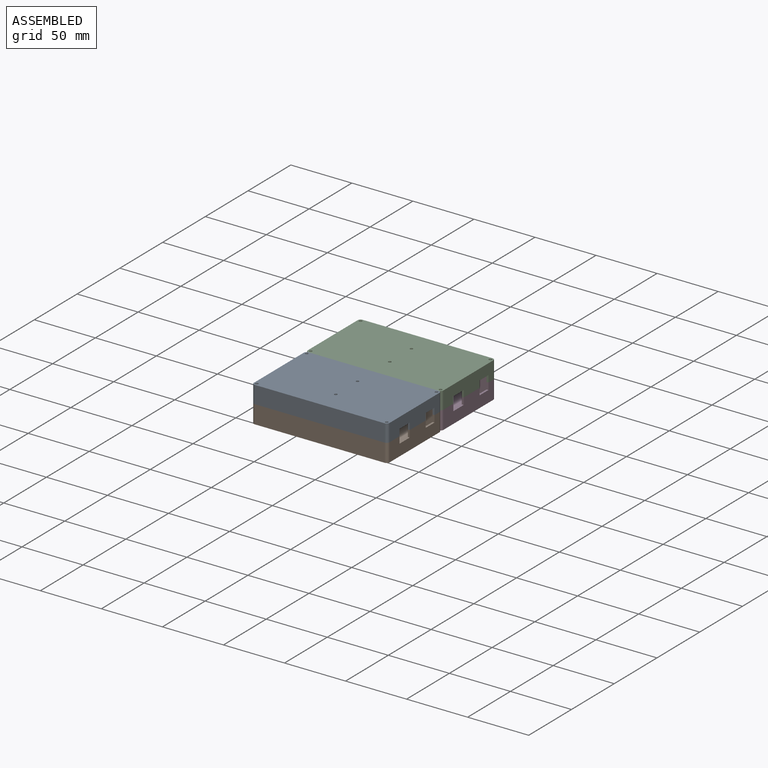
[diagram: assembled view]
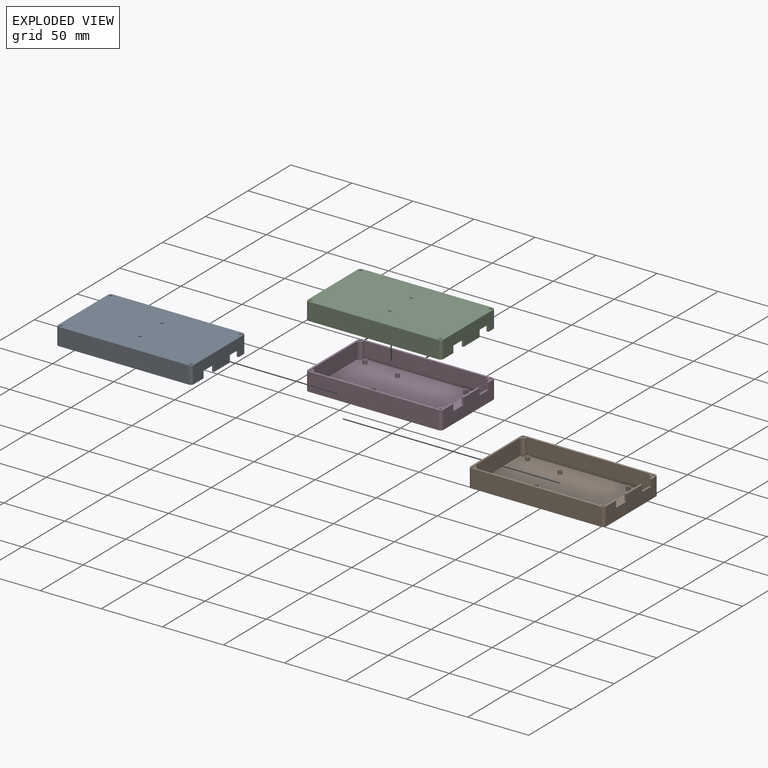
[diagram: exploded view]
GUIDED TOUR — MATED ASSEMBLY (Onshape document 59053b31947b3310e18dbb37, AutoMate assembly 59053b31947b3310e18dbb37_3f9804c256d4c738a9c018ee_5ea5561ca671f029e77b5cbb_default)

This assembly has 4 components, labeled P0..P3 below (a component is one placed occurrence of a part; the same part can appear more than once), held together by 9 mates. A mate is a constraint between two components; its type names the relative motion it leaves free:
  CYLINDRICAL — leaves both rotation about and translation along the listed axis free,
  PLANAR — leaves sliding in the plane through the listed point (normal = the listed direction) and rotation about that normal free.
Axis/direction vectors are unit vectors and 'through' points are millimeter coordinates, both in the assembly's world frame.

MATES
  1. PLANAR "Planar 6": P0 <-> P1, direction (-1.000, 0.000, 0.000) through (-55.56, -84.02, 25.72) mm
  2. CYLINDRICAL "Cylindrical 1": P2 <-> P3, axis (0.000, 0.000, 1.000) through (53.18, -29.15, 14.92) mm
  3. PLANAR "Planar 4": P1 <-> P3, direction (0.000, 0.000, -1.000) through (0.00, -63.07, 0.00) mm
  4. PLANAR "Planar 5": P0 <-> P1, direction (0.000, 0.000, -1.000) through (-53.97, -36.30, 14.92) mm
  5. PLANAR "Planar 7": P0 <-> P1, direction (0.000, -1.000, 0.000) through (0.00, -94.60, 22.07) mm
  6. PLANAR "Planar 3": P1 <-> P3, direction (-1.000, 0.000, 0.000) through (-55.56, -63.07, 0.00) mm
  7. CYLINDRICAL "Cylindrical 2": P2 <-> P3, axis (0.000, 0.000, 1.000) through (-53.18, -29.15, 14.92) mm
  8. PLANAR "Planar 1": P3 <-> P2, direction (0.000, 0.000, 1.000) through (-53.18, -29.15, 14.92) mm
  9. PLANAR "Planar 2": P1 <-> P3, direction (0.000, 1.000, 0.000) through (0.00, -31.53, 7.46) mm

ASSEMBLY ORDER
  1. P3 — the base component [order verified]
  2. P2 [order verified]
  3. P1 [order verified]
  4. P0 [order verified]
Order-tag legend:
  [order verified] — this step's position reverses a verified removal order: the component was checked to insert without passing through the ones already placed.

Of the 4 components, 4 carry the full construction recipe — the FeatureScript program that regenerates the part's solid from scratch; the rest are supplied as boundary geometry only.
Each toured component is shown spotlighted twice — in the assembled view, then in the exploded view, where a leader line traces a displaced component back to its assembled socket (saturated green if recipe-attached, orange if geometry-only; every other component desaturated gray) — followed by its recipe or geometry summary and the mates that hold it.
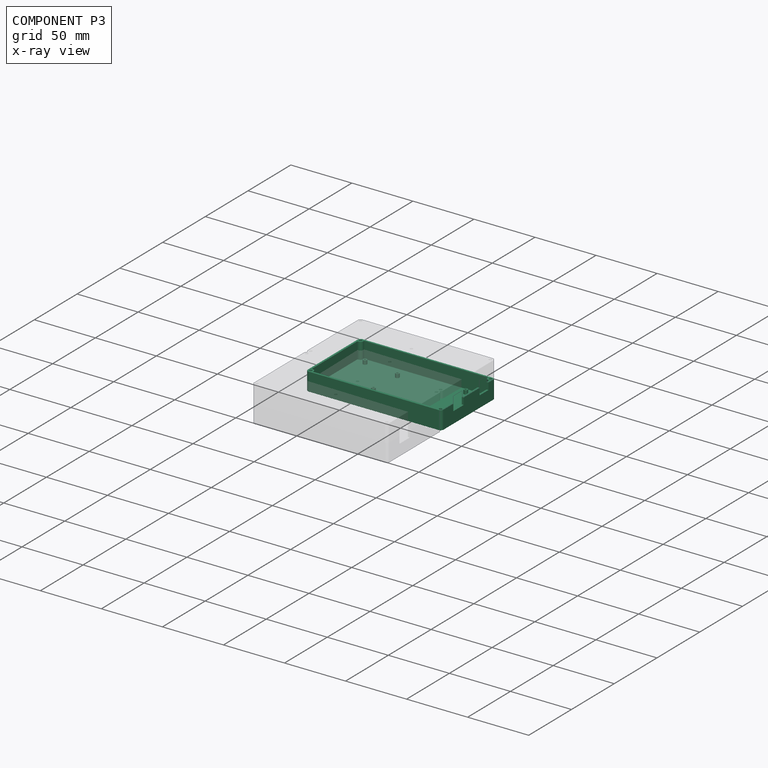
[diagram: component P3 — x-ray view]
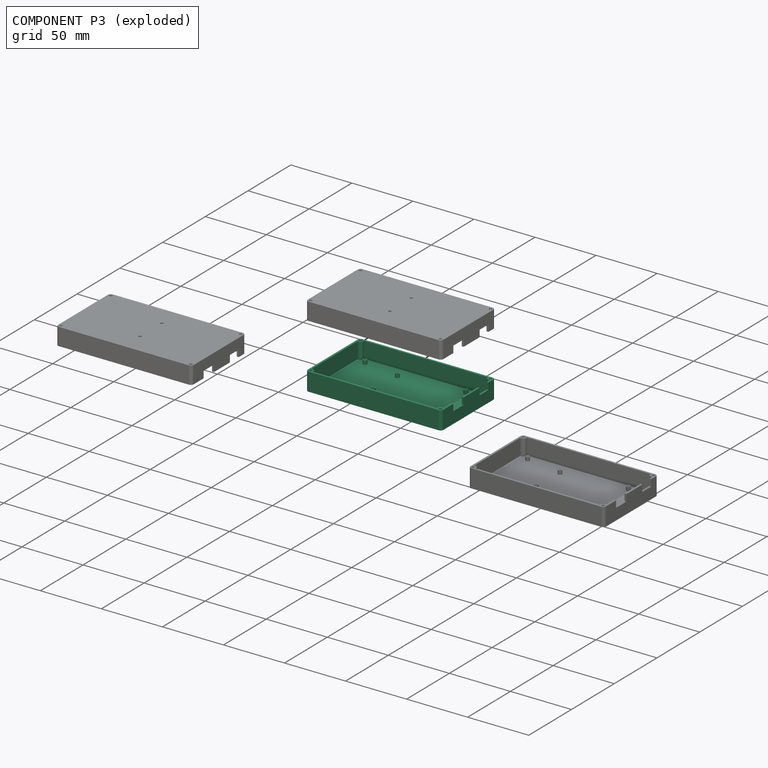
[diagram: component P3 — exploded]
COMPONENT P3 — same part as P1 (CADFS 00753730); its construction recipe is shown at P1.
Held by: CYLINDRICAL mate "Cylindrical 1" to P2; PLANAR mate "Planar 4" to P1; PLANAR mate "Planar 3" to P1; CYLINDRICAL mate "Cylindrical 2" to P2; PLANAR mate "Planar 1" to P2; PLANAR mate "Planar 2" to P1.
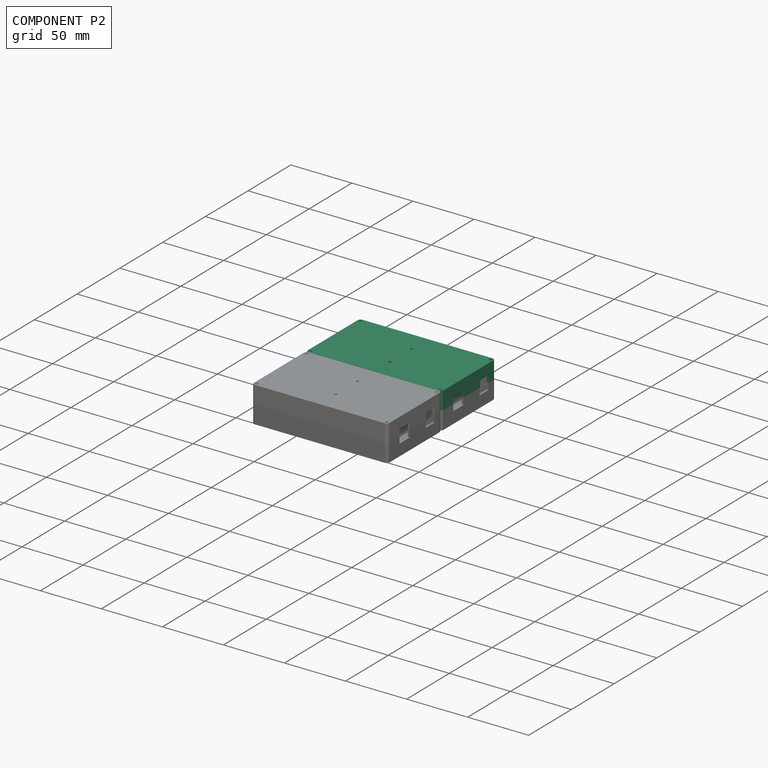
[diagram: component P2 — assembled]
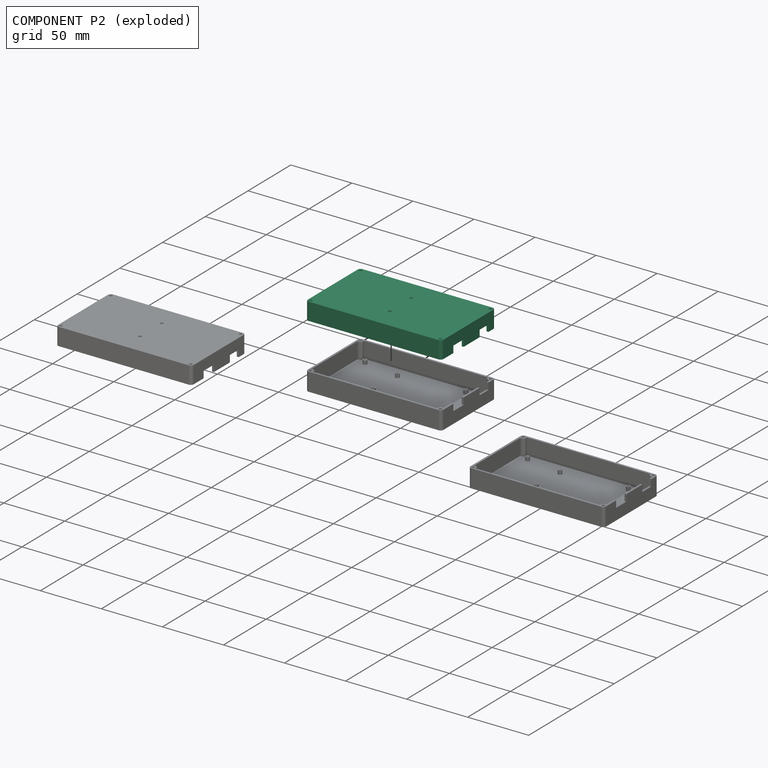
[diagram: component P2 — exploded]
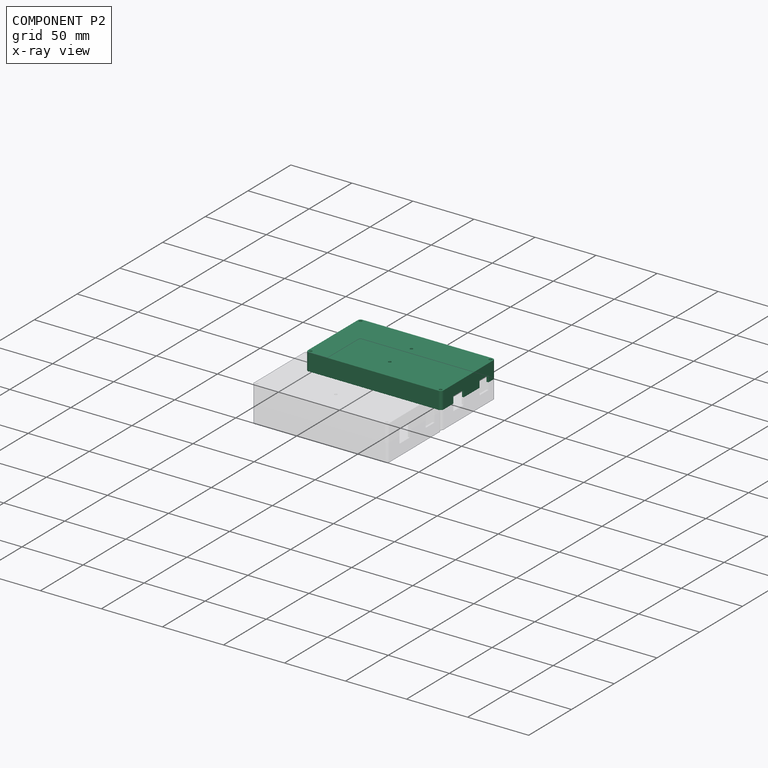
[diagram: component P2 — x-ray view]
COMPONENT P2 — same part as P0 (CADFS 00753731); its construction recipe is shown at P0.
Held by: CYLINDRICAL mate "Cylindrical 1" to P3; CYLINDRICAL mate "Cylindrical 2" to P3; PLANAR mate "Planar 1" to P3.
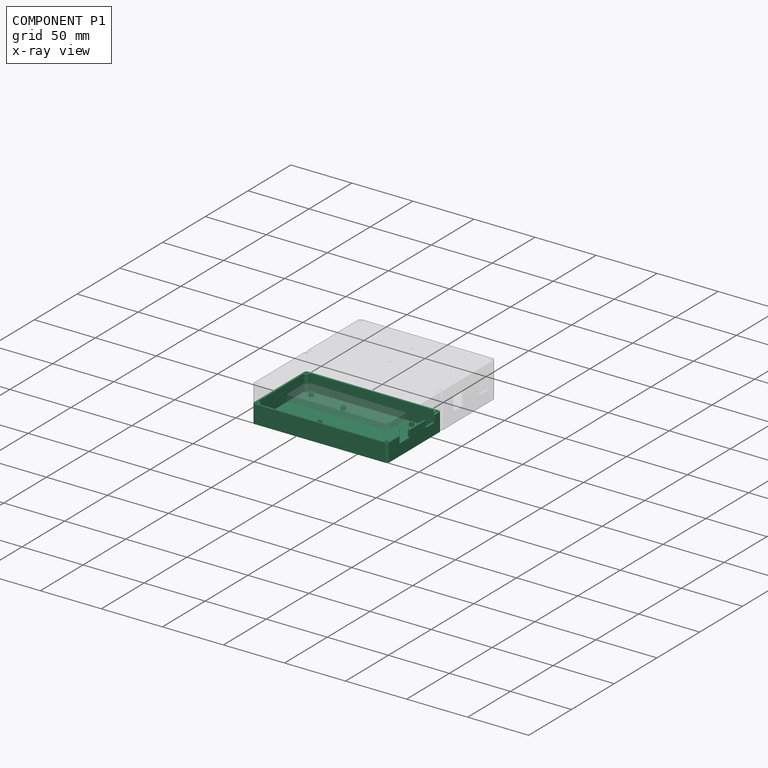
[diagram: component P1 — x-ray view]
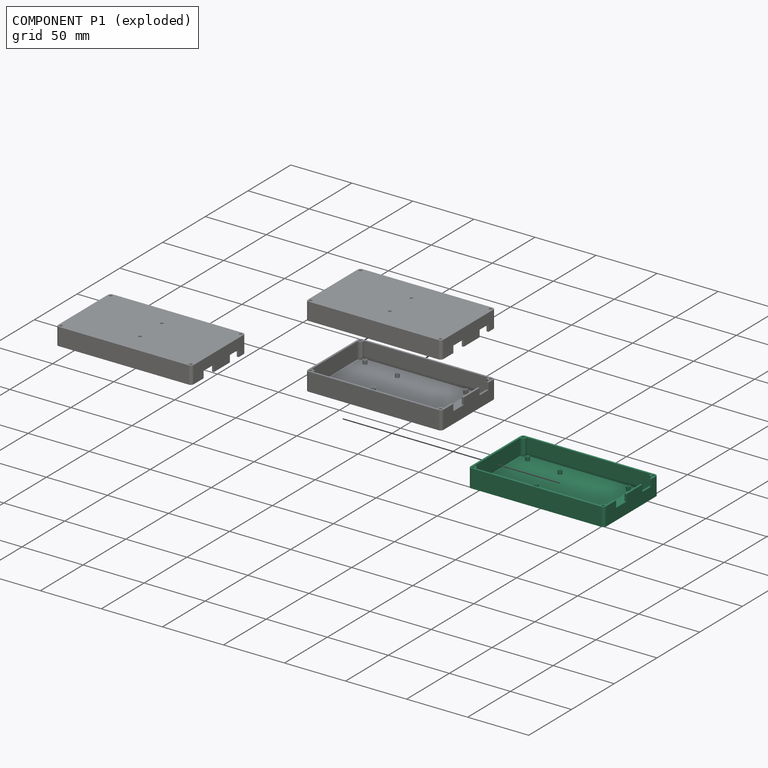
[diagram: component P1 — exploded]
COMPONENT P1 — recipe-attached (CADFS 00753730, mesh-verified: the recipe's output STEP matches this component's geometry to below the mesh-comparison resolution (tessellation chordal tolerance ~0.193 mm)).
Held by: PLANAR mate "Planar 6" to P0; PLANAR mate "Planar 4" to P3; PLANAR mate "Planar 5" to P0; PLANAR mate "Planar 7" to P0; PLANAR mate "Planar 3" to P3; PLANAR mate "Planar 2" to P3.
Construction recipe (FeatureScript — the CAD program that rebuilds this solid; sketch coordinates are in the units given by the * unit suffixes, e.g. mm):

FeatureScript 1511;
import(path : "onshape/std/geometry.fs", version : "1511.0");
import(path : "onshape/std/common.fs", version : "1511.0");
const mm = millimeter;
const VERTEX = EntityType.VERTEX;
const EDGE = EntityType.EDGE;
const FACE = EntityType.FACE;
const BODY = EntityType.BODY;
function v(x, y){return vector(x, y);}
function OD(order){return orderDisambiguation(order);}
function OSD(set){return originalSetDisambiguation(set);}
function TD(topology){return topologyDisambiguation(topology);}
function TDD(query){return trueDependencyDisambiguation(query);}
function sQuery(a, b, c) {return sketchEntityQuery(a, b, c);}

annotation { "Feature Type Name" : "Feature", "Feature Type Description" : "" }
export const myFeature = defineFeature(function(context is Context, id is Id, definition is map)
    precondition{}
    {
        {
            var Q0;
            Q0=qCreatedBy(makeId("Top.planeOp"),FACE);
            var sketch = newSketch(context, id + "F0", { "sketchPlane" : qUnion([Q0])});
            skLineSegment(sketch, "E0.bottom", {"start": v(50.8, 26.77) * mm, "end": v(-50.8, 26.77) * mm});
            skLineSegment(sketch, "E0.top", {"start": v(50.8, -26.77) * mm, "end": v(-50.8, -26.77) * mm});
            skLineSegment(sketch, "E0.left", {"start": v(50.8, 26.77) * mm, "end": v(50.8, -26.77) * mm});
            skLineSegment(sketch, "E0.right", {"start": v(-50.8, 26.77) * mm, "end": v(-50.8, -26.77) * mm});
            skPoint(sketch, "E0.middle", {"position": v(0, 0) * mm});
            skSolve(sketch);
        }
        {
            var Q0;
            Q0=qCreatedBy(makeId("Top.planeOp"),FACE);
            var sketch = newSketch(context, id + "F1", { "sketchPlane" : qUnion([Q0])});
            skLineSegment(sketch, "E1.bottom", {"start": v(55.56, 31.53) * mm, "end": v(-55.56, 31.53) * mm});
            skLineSegment(sketch, "E1.top", {"start": v(55.56, -31.53) * mm, "end": v(-55.56, -31.53) * mm});
            skLineSegment(sketch, "E1.left", {"start": v(55.56, 31.53) * mm, "end": v(55.56, -31.53) * mm});
            skLineSegment(sketch, "E1.right", {"start": v(-55.56, 31.53) * mm, "end": v(-55.56, -31.53) * mm});
            skPoint(sketch, "E1.middle", {"position": v(0, 0) * mm});
            skLineSegment(sketch, "E2.bottom", {"start": v(53.97, 29.95) * mm, "end": v(-53.98, 29.95) * mm, "construction": true});
            skLineSegment(sketch, "E2.top", {"start": v(53.98, -29.95) * mm, "end": v(-53.97, -29.95) * mm, "construction": true});
            skLineSegment(sketch, "E2.left", {"start": v(53.97, 29.95) * mm, "end": v(53.98, -29.95) * mm, "construction": true});
            skLineSegment(sketch, "E2.right", {"start": v(-53.98, 29.95) * mm, "end": v(-53.97, -29.95) * mm, "construction": true});
            skSolve(sketch);
        }
        {
            var Q0;
            Q0=makeQuery(id+"F1.imprint","IMPRINT",FACE,{"disambiguationData":[TD([[makeQuery(id+"F1.imprint","IMPRINT",EDGE,{"derivedFrom":sQuery(id+"F1.wireOp",EDGE,"E1.bottom")}),1.0]])]});
            extrude(context, id + "F2", {"entities" : qUnion([Q0]), "depth" : 1.59 * mm, "offsetDistance" : 25.4 * mm});
        }
        {
            var Q0;
            Q0=makeQuery(id+"F2.opExtrude","CAP_FACE",FACE,{"disambiguationData":[OSD([sQuery(id+"F1.wireOp",EDGE,"E1.bottom"),sQuery(id+"F1.wireOp",EDGE,"E1.top"),sQuery(id+"F1.wireOp",EDGE,"E1.left"),sQuery(id+"F1.wireOp",EDGE,"E1.right")])],"isStart":false});
            var sketch = newSketch(context, id + "F3", { "sketchPlane" : qUnion([Q0])});
            skLineSegment(sketch, "E3.bottom", {"start": v(55.56, 31.53) * mm, "end": v(-55.56, 31.53) * mm});
            skLineSegment(sketch, "E3.top", {"start": v(55.56, -31.53) * mm, "end": v(-55.56, -31.53) * mm});
            skLineSegment(sketch, "E3.left", {"start": v(55.56, 31.53) * mm, "end": v(55.56, -31.53) * mm});
            skLineSegment(sketch, "E3.right", {"start": v(-55.56, 31.53) * mm, "end": v(-55.56, -31.53) * mm});
            skPoint(sketch, "E3.middle", {"position": v(0, 0) * mm});
            skLineSegment(sketch, "E4.left", {"start": v(53.97, 26.77) * mm, "end": v(53.97, -26.77) * mm});
            skLineSegment(sketch, "E4.right", {"start": v(-53.97, 26.77) * mm, "end": v(-53.97, -26.77) * mm});
            skArc(sketch, "E5", {"start": v(-53.18, 26.77) * mm, "mid": v(-51.5, 27.47) * mm, "end": v(-50.8, 29.15) * mm});
            skCircle(sketch, "E6", {"center": v(-53.18, 29.15) * mm, "radius": 1.2 * mm});
            skLineSegment(sketch, "E7", {"start": v(-50.8, 29.15) * mm, "end": v(-50.8, 29.95) * mm});
            skLineSegment(sketch, "E8", {"start": v(-53.18, 26.77) * mm, "end": v(-53.97, 26.77) * mm});
            skLineSegment(sketch, "E9", {"start": v(-55.56, 31.53) * mm, "end": v(-51.5, 27.47) * mm, "construction": true});
            skPoint(sketch, "E10", {"position": v(-53.53, 29.5) * mm});
            skPoint(sketch, "E11.orphan", {"position": v(-53.97, 37.1) * mm});
            skCircle(sketch, "E12.MirrorC", {"center": v(-53.18, -29.15) * mm, "radius": 1.2 * mm});
            skLineSegment(sketch, "E13.MirrorCS", {"start": v(-53.18, -26.77) * mm, "end": v(-53.97, -26.77) * mm});
            skArc(sketch, "E14.MirrorCS", {"start": v(-53.18, -26.77) * mm, "mid": v(-51.5, -27.47) * mm, "end": v(-50.8, -29.15) * mm});
            skLineSegment(sketch, "E15.MirrorCS", {"start": v(-50.8, -29.15) * mm, "end": v(-50.8, -29.95) * mm});
            skCircle(sketch, "E16.MirrorC", {"center": v(53.18, 29.15) * mm, "radius": 1.2 * mm});
            skLineSegment(sketch, "E17.MirrorCS", {"start": v(50.8, 29.15) * mm, "end": v(50.8, 29.95) * mm});
            skArc(sketch, "E18.MirrorCS", {"start": v(53.18, 26.77) * mm, "mid": v(51.5, 27.47) * mm, "end": v(50.8, 29.15) * mm});
            skLineSegment(sketch, "E19.MirrorCS", {"start": v(53.18, 26.77) * mm, "end": v(53.97, 26.77) * mm});
            skCircle(sketch, "E20.MirrorC", {"center": v(53.18, -29.15) * mm, "radius": 1.2 * mm});
            skLineSegment(sketch, "E21.MirrorCS", {"start": v(53.18, -26.77) * mm, "end": v(53.97, -26.77) * mm});
            skArc(sketch, "E22.MirrorCS", {"start": v(53.18, -26.77) * mm, "mid": v(51.5, -27.47) * mm, "end": v(50.8, -29.15) * mm});
            skLineSegment(sketch, "E23.MirrorCS", {"start": v(50.8, -29.15) * mm, "end": v(50.8, -29.95) * mm});
            skPoint(sketch, "E24.orphan", {"position": v(-53.97, -36.92) * mm});
            skLineSegment(sketch, "E25.trimOffspring", {"start": v(50.8, -29.95) * mm, "end": v(-50.8, -29.95) * mm});
            skPoint(sketch, "E26.orphan", {"position": v(53.97, -37.1) * mm});
            skLineSegment(sketch, "E27.trimOffspring", {"start": v(50.8, 29.95) * mm, "end": v(-50.8, 29.95) * mm});
            skPoint(sketch, "E28.orphan", {"position": v(53.97, 36.92) * mm});
            skSolve(sketch);
        }
        {
            var Q0;
            Q0=qSketchRegion(id+"F3",true);
            extrude(context, id + "F4", {"entities" : qUnion([Q0]), "operationType" : NewBodyOperationType.ADD, "depth" : 13.33 * mm, "offsetDistance" : 25.4 * mm});
        }
        {
            var Q0;
            Q0=makeQuery(id+"F4.boolean.opBoolean","MERGE",EDGE,{"derivedFrom":[makeQuery(id+"F2.opExtrude","SWEPT_EDGE",EDGE,{"disambiguationData":[OSD([sQuery(id+"F1.wireOp",EDGE,"E1.top"),sQuery(id+"F1.wireOp",EDGE,"E1.left")])]}),makeQuery(id+"F4.opExtrude","SWEPT_EDGE",EDGE,{"disambiguationData":[OSD([sQuery(id+"F3.wireOp",EDGE,"E3.top"),sQuery(id+"F3.wireOp",EDGE,"E3.left")])]})]});
            var Q1;
            Q1=makeQuery(id+"F4.boolean.opBoolean","MERGE",EDGE,{"derivedFrom":[makeQuery(id+"F2.opExtrude","SWEPT_EDGE",EDGE,{"disambiguationData":[OSD([sQuery(id+"F1.wireOp",EDGE,"E1.bottom"),sQuery(id+"F1.wireOp",EDGE,"E1.left")])]}),makeQuery(id+"F4.opExtrude","SWEPT_EDGE",EDGE,{"disambiguationData":[OSD([sQuery(id+"F3.wireOp",EDGE,"E3.bottom"),sQuery(id+"F3.wireOp",EDGE,"E3.left")])]})]});
            var Q2;
            Q2=makeQuery(id+"F4.boolean.opBoolean","MERGE",EDGE,{"derivedFrom":[makeQuery(id+"F2.opExtrude","SWEPT_EDGE",EDGE,{"disambiguationData":[OSD([sQuery(id+"F1.wireOp",EDGE,"E1.top"),sQuery(id+"F1.wireOp",EDGE,"E1.right")])]}),makeQuery(id+"F4.opExtrude","SWEPT_EDGE",EDGE,{"disambiguationData":[OSD([sQuery(id+"F3.wireOp",EDGE,"E3.top"),sQuery(id+"F3.wireOp",EDGE,"E3.right")])]})]});
            var Q3;
            Q3=makeQuery(id+"F4.boolean.opBoolean","MERGE",EDGE,{"derivedFrom":[makeQuery(id+"F2.opExtrude","SWEPT_EDGE",EDGE,{"disambiguationData":[OSD([sQuery(id+"F1.wireOp",EDGE,"E1.bottom"),sQuery(id+"F1.wireOp",EDGE,"E1.right")])]}),makeQuery(id+"F4.opExtrude","SWEPT_EDGE",EDGE,{"disambiguationData":[OSD([sQuery(id+"F3.wireOp",EDGE,"E3.bottom"),sQuery(id+"F3.wireOp",EDGE,"E3.right")])]})]});
            fillet(context, id + "F5", {"entities" : qUnion([Q0, Q1, Q2, Q3]), "radius" : 2.38 * mm, "tangentPropagation" : true, "allowEdgeOverflow" : false});
        }
        {
            var Q0;
            Q0=makeQuery(id+"F4.boolean.opBoolean","MERGE",FACE,{"derivedFrom":[makeQuery(id+"F2.opExtrude","SWEPT_FACE",FACE,{"disambiguationData":[OSD([sQuery(id+"F1.wireOp",EDGE,"E1.left")])]}),makeQuery(id+"F4.opExtrude","SWEPT_FACE",FACE,{"disambiguationData":[OSD([sQuery(id+"F3.wireOp",EDGE,"E3.left")])]})]});
            var sketch = newSketch(context, id + "F6", { "sketchPlane" : qUnion([Q0])});
            skLineSegment(sketch, "E29.bottom", {"start": v(-17.59, 14.92) * mm, "end": v(-5.52, 14.92) * mm});
            skLineSegment(sketch, "E29.top", {"start": v(-17.59, 9.4) * mm, "end": v(-5.52, 9.4) * mm});
            skLineSegment(sketch, "E29.left", {"start": v(-17.59, 14.92) * mm, "end": v(-17.59, 9.4) * mm});
            skLineSegment(sketch, "E29.right", {"start": v(-5.52, 14.92) * mm, "end": v(-5.52, 9.4) * mm});
            skLineSegment(sketch, "E30.bottom", {"start": v(13.14, 14.92) * mm, "end": v(23.43, 14.92) * mm});
            skLineSegment(sketch, "E30.top", {"start": v(13.14, 9.4) * mm, "end": v(23.43, 9.4) * mm});
            skLineSegment(sketch, "E30.left", {"start": v(13.14, 14.92) * mm, "end": v(13.14, 9.4) * mm});
            skLineSegment(sketch, "E30.right", {"start": v(23.43, 14.92) * mm, "end": v(23.43, 9.4) * mm});
            skPoint(sketch, "E31", {"position": v(-11.56, 9.4) * mm});
            skPoint(sketch, "E32", {"position": v(18.29, 9.4) * mm});
            skSolve(sketch);
        }
        {
            var Q0;
            Q0=qSketchRegion(id+"F6",true);
            extrude(context, id + "F7", {"entities" : qUnion([Q0]), "operationType" : NewBodyOperationType.REMOVE, "endBound" : BoundingType.UP_TO_NEXT, "oppositeDirection" : true, "depth" : 25.4 * mm, "offsetDistance" : 25.4 * mm});
        }
        {
            var Q0;
            Q0=makeQuery(id+"F4.boolean.opBoolean","SPLIT",FACE,{"disambiguationData":[TD([makeQuery(id+"F4.opExtrude","SWEPT_FACE",FACE,{"disambiguationData":[OSD([sQuery(id+"F3.wireOp",EDGE,"E4.left")])]})])],"derivedFrom":makeQuery(id+"F2.opExtrude","CAP_FACE",FACE,{"disambiguationData":[OSD([sQuery(id+"F1.wireOp",EDGE,"E1.bottom"),sQuery(id+"F1.wireOp",EDGE,"E1.top"),sQuery(id+"F1.wireOp",EDGE,"E1.left"),sQuery(id+"F1.wireOp",EDGE,"E1.right")])],"isStart":false})});
            var sketch = newSketch(context, id + "F8", { "sketchPlane" : qUnion([Q0])});
            skCircle(sketch, "E33", {"center": v(-45.8, 23.77) * mm, "radius": 0.8 * mm});
            skCircle(sketch, "E34", {"center": v(-39.3, -24.23) * mm, "radius": 0.8 * mm});
            skCircle(sketch, "E35", {"center": v(-15.8, 18.77) * mm, "radius": 0.8 * mm});
            skCircle(sketch, "E36", {"center": v(-15.8, -9.23) * mm, "radius": 0.8 * mm});
            skCircle(sketch, "E37", {"center": v(36.7, 23.77) * mm, "radius": 0.8 * mm});
            skCircle(sketch, "E38", {"center": v(36.7, -24.23) * mm, "radius": 0.8 * mm});
            skCircle(sketch, "E39", {"center": v(-45.8, 23.77) * mm, "radius": 1.59 * mm});
            skCircle(sketch, "E40", {"center": v(-39.3, -24.23) * mm, "radius": 1.59 * mm});
            skCircle(sketch, "E41", {"center": v(-15.8, 18.77) * mm, "radius": 1.59 * mm});
            skCircle(sketch, "E42", {"center": v(-15.8, -9.23) * mm, "radius": 1.59 * mm});
            skCircle(sketch, "E43", {"center": v(36.7, 23.77) * mm, "radius": 1.59 * mm});
            skCircle(sketch, "E44", {"center": v(36.7, -24.23) * mm, "radius": 1.59 * mm});
            skSolve(sketch);
        }
        {
            var Q0;
            Q0=qSketchRegion(id+"F8",true);
            extrude(context, id + "F9", {"entities" : qUnion([Q0]), "operationType" : NewBodyOperationType.ADD, "depth" : 3.17 * mm, "offsetDistance" : 25.4 * mm});
        }
        {
            var Q0;
            {var subQ0=sQuery(id+"F3.wireOp",EDGE,"E18.MirrorCS");var subQ1=sQuery(id+"F3.wireOp",EDGE,"E17.MirrorCS");var subQ2=sQuery(id+"F3.wireOp",EDGE,"E16.MirrorC");var subQ3=sQuery(id+"F3.wireOp",EDGE,"E15.MirrorCS");var subQ4=sQuery(id+"F3.wireOp",EDGE,"E14.MirrorCS");var subQ5=sQuery(id+"F3.wireOp",EDGE,"E13.MirrorCS");var subQ6=sQuery(id+"F3.wireOp",EDGE,"E12.MirrorC");var subQ7=sQuery(id+"F3.wireOp",EDGE,"E8");var subQ8=sQuery(id+"F3.wireOp",EDGE,"E7");var subQ9=sQuery(id+"F3.wireOp",EDGE,"E6");var subQ10=sQuery(id+"F3.wireOp",EDGE,"E5");var subQ11=sQuery(id+"F3.wireOp",EDGE,"E3.top");var subQ12=sQuery(id+"F3.wireOp",EDGE,"E3.left");var subQ13=sQuery(id+"F3.wireOp",EDGE,"E3.bottom");var subQ15=sQuery(id+"F1.wireOp",EDGE,"E1.bottom");var subQ17=sQuery(id+"F3.wireOp",EDGE,"E22.MirrorCS");var subQ19=sQuery(id+"F3.wireOp",EDGE,"E25.trimOffspring");var subQ20=sQuery(id+"F3.wireOp",EDGE,"E3.right");var subQ21=sQuery(id+"F3.wireOp",EDGE,"E19.MirrorCS");var subQ22=sQuery(id+"F3.wireOp",EDGE,"E23.MirrorCS");var subQ23=sQuery(id+"F3.wireOp",EDGE,"E4.left");var subQ24=sQuery(id+"F3.wireOp",EDGE,"E4.right");var subQ25=sQuery(id+"F3.wireOp",EDGE,"E20.MirrorC");var subQ26=sQuery(id+"F3.wireOp",EDGE,"E21.MirrorCS");var subQ27=sQuery(id+"F3.wireOp",EDGE,"E27.trimOffspring");Q0=makeQuery(id+"F7.boolean.opBoolean","SPLIT",FACE,{"disambiguationData":[TD([makeQuery(id+"F2.opExtrude","SWEPT_FACE",FACE,{"disambiguationData":[OSD([subQ15])]})])],"derivedFrom":makeQuery(id+"F4.opExtrude","CAP_FACE",FACE,{"disambiguationData":[OSD([subQ13,subQ11,subQ12,subQ20,subQ23,subQ24,subQ10,subQ9,subQ8,subQ7,subQ6,subQ5,subQ4,subQ3,subQ2,subQ1,subQ0,subQ21,subQ25,subQ26,subQ17,subQ22,subQ19,subQ27])],"isStart":false})});}
            var sketch = newSketch(context, id + "F10", { "sketchPlane" : qUnion([Q0])});
            skCircle(sketch, "E45.0", {"center": v(-53.18, 29.15) * mm, "radius": 1.2 * mm});
            skCircle(sketch, "E46.0", {"center": v(-53.18, -29.15) * mm, "radius": 1.2 * mm});
            skCircle(sketch, "E47.0", {"center": v(53.18, -29.15) * mm, "radius": 1.2 * mm});
            skCircle(sketch, "E48.0", {"center": v(53.18, 29.15) * mm, "radius": 1.2 * mm});
            skSolve(sketch);
        }
        {
            var Q0;
            Q0=qSketchRegion(id+"F10",true);
            extrude(context, id + "F11", {"entities" : qUnion([Q0]), "operationType" : NewBodyOperationType.REMOVE, "endBound" : BoundingType.THROUGH_ALL, "oppositeDirection" : true, "depth" : 25.4 * mm, "offsetDistance" : 25.4 * mm});
        }
    });
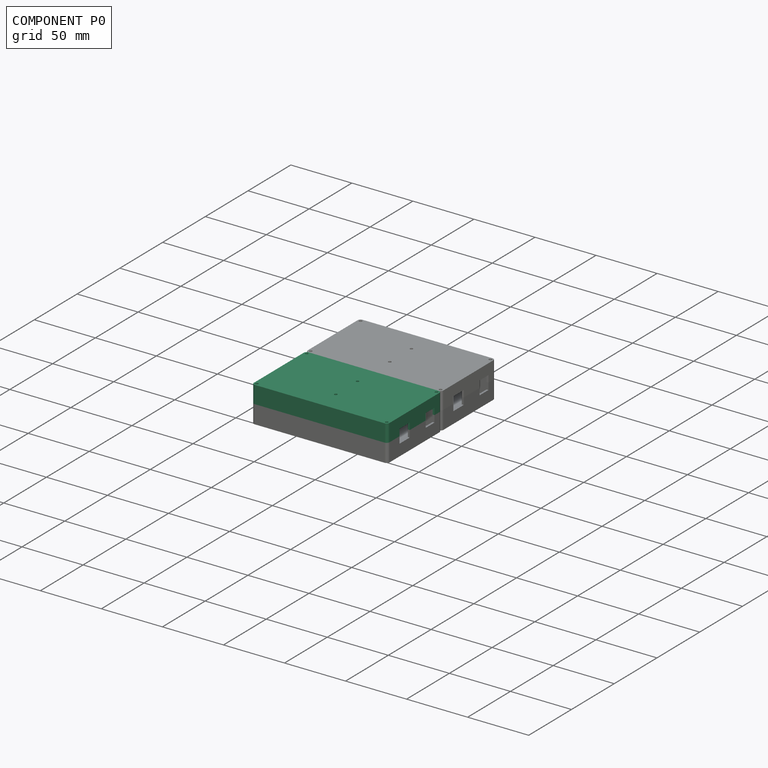
[diagram: component P0 — assembled]
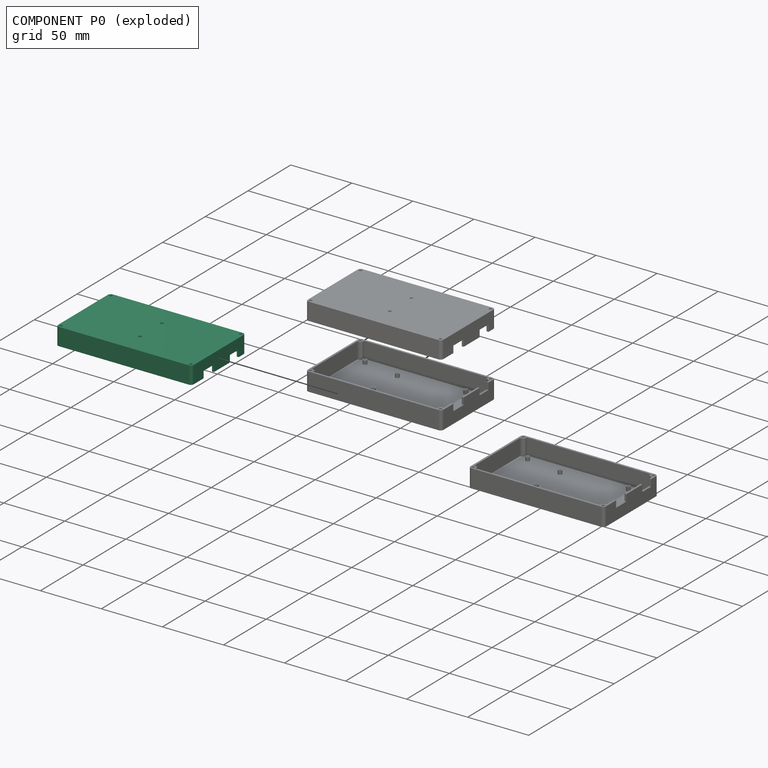
[diagram: component P0 — exploded]
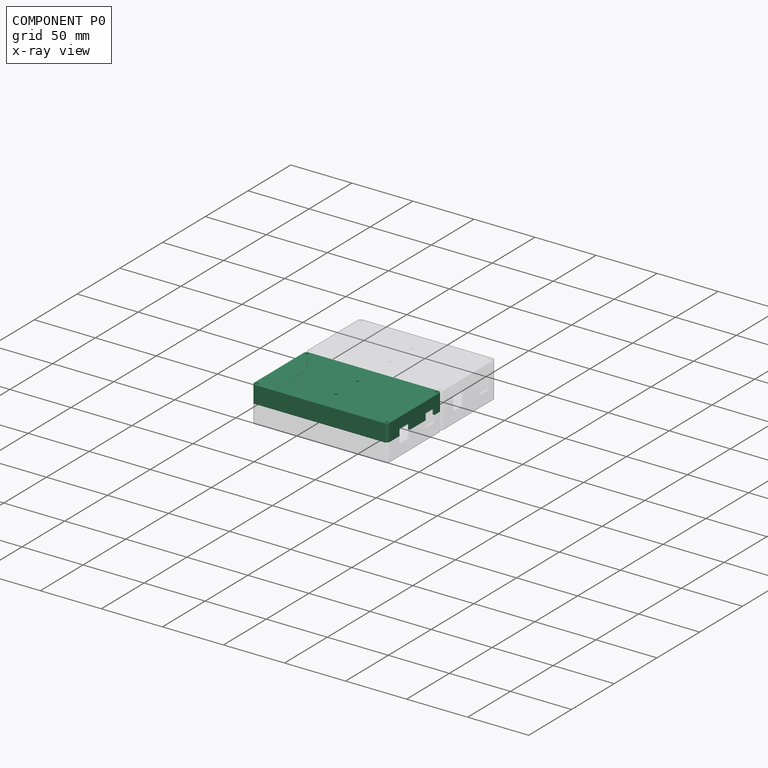
[diagram: component P0 — x-ray view]
COMPONENT P0 — recipe-attached (CADFS 00753731, mesh-verified: the recipe's output STEP matches this component's geometry to below the mesh-comparison resolution (tessellation chordal tolerance ~0.193 mm)).
Held by: PLANAR mate "Planar 6" to P1; PLANAR mate "Planar 5" to P1; PLANAR mate "Planar 7" to P1.
Construction recipe (FeatureScript — the CAD program that rebuilds this solid; sketch coordinates are in the units given by the * unit suffixes, e.g. mm):

FeatureScript 1511;
import(path : "onshape/std/geometry.fs", version : "1511.0");
import(path : "onshape/std/common.fs", version : "1511.0");
const mm = millimeter;
const VERTEX = EntityType.VERTEX;
const EDGE = EntityType.EDGE;
const FACE = EntityType.FACE;
const BODY = EntityType.BODY;
function v(x, y){return vector(x, y);}
function OD(order){return orderDisambiguation(order);}
function OSD(set){return originalSetDisambiguation(set);}
function TD(topology){return topologyDisambiguation(topology);}
function TDD(query){return trueDependencyDisambiguation(query);}
function sQuery(a, b, c) {return sketchEntityQuery(a, b, c);}

annotation { "Feature Type Name" : "Feature", "Feature Type Description" : "" }
export const myFeature = defineFeature(function(context is Context, id is Id, definition is map)
    precondition{}
    {
        {
            var Q0;
            Q0=qCreatedBy(makeId("Top.planeOp"),FACE);
            var sketch = newSketch(context, id + "F0", { "sketchPlane" : qUnion([Q0])});
            skLineSegment(sketch, "E0.bottom", {"start": v(50.8, 26.77) * mm, "end": v(-50.8, 26.77) * mm});
            skLineSegment(sketch, "E0.top", {"start": v(50.8, -26.77) * mm, "end": v(-50.8, -26.77) * mm});
            skLineSegment(sketch, "E0.left", {"start": v(50.8, 26.77) * mm, "end": v(50.8, -26.77) * mm});
            skLineSegment(sketch, "E0.right", {"start": v(-50.8, 26.77) * mm, "end": v(-50.8, -26.77) * mm});
            skPoint(sketch, "E0.middle", {"position": v(0, 0) * mm});
            skSolve(sketch);
        }
        {
            var Q0;
            Q0=qCreatedBy(makeId("Top.planeOp"),FACE);
            var sketch = newSketch(context, id + "F1", { "sketchPlane" : qUnion([Q0])});
            skLineSegment(sketch, "E1.bottom", {"start": v(55.56, 31.53) * mm, "end": v(-55.56, 31.53) * mm});
            skLineSegment(sketch, "E1.top", {"start": v(55.56, -31.53) * mm, "end": v(-55.56, -31.53) * mm});
            skLineSegment(sketch, "E1.left", {"start": v(55.56, 31.53) * mm, "end": v(55.56, -31.53) * mm});
            skLineSegment(sketch, "E1.right", {"start": v(-55.56, 31.53) * mm, "end": v(-55.56, -31.53) * mm});
            skPoint(sketch, "E1.middle", {"position": v(0, 0) * mm});
            skLineSegment(sketch, "E2.bottom", {"start": v(53.97, 29.95) * mm, "end": v(-53.98, 29.95) * mm, "construction": true});
            skLineSegment(sketch, "E2.top", {"start": v(53.98, -29.95) * mm, "end": v(-53.97, -29.95) * mm, "construction": true});
            skLineSegment(sketch, "E2.left", {"start": v(53.97, 29.95) * mm, "end": v(53.98, -29.95) * mm, "construction": true});
            skLineSegment(sketch, "E2.right", {"start": v(-53.98, 29.95) * mm, "end": v(-53.97, -29.95) * mm, "construction": true});
            skSolve(sketch);
        }
        {
            var Q0;
            Q0=makeQuery(id+"F1.imprint","IMPRINT",FACE,{"disambiguationData":[TD([[makeQuery(id+"F1.imprint","IMPRINT",EDGE,{"derivedFrom":sQuery(id+"F1.wireOp",EDGE,"E1.bottom")}),1.0]])]});
            extrude(context, id + "F2", {"entities" : qUnion([Q0]), "depth" : 1.59 * mm, "offsetDistance" : 25.4 * mm});
        }
        {
            var Q0;
            Q0=makeQuery(id+"F2.opExtrude","CAP_FACE",FACE,{"disambiguationData":[OSD([sQuery(id+"F1.wireOp",EDGE,"E1.bottom"),sQuery(id+"F1.wireOp",EDGE,"E1.top"),sQuery(id+"F1.wireOp",EDGE,"E1.left"),sQuery(id+"F1.wireOp",EDGE,"E1.right")])],"isStart":false});
            var sketch = newSketch(context, id + "F3", { "sketchPlane" : qUnion([Q0])});
            skLineSegment(sketch, "E3.bottom", {"start": v(55.56, 31.53) * mm, "end": v(-55.56, 31.53) * mm});
            skLineSegment(sketch, "E3.top", {"start": v(55.56, -31.53) * mm, "end": v(-55.56, -31.53) * mm});
            skLineSegment(sketch, "E3.left", {"start": v(55.56, 31.53) * mm, "end": v(55.56, -31.53) * mm});
            skLineSegment(sketch, "E3.right", {"start": v(-55.56, 31.53) * mm, "end": v(-55.56, -31.53) * mm});
            skPoint(sketch, "E3.middle", {"position": v(0, 0) * mm});
            skLineSegment(sketch, "E4.left", {"start": v(53.97, 26.77) * mm, "end": v(53.97, -26.77) * mm});
            skLineSegment(sketch, "E4.right", {"start": v(-53.97, 26.77) * mm, "end": v(-53.97, -26.77) * mm});
            skArc(sketch, "E5", {"start": v(-53.18, 26.77) * mm, "mid": v(-51.5, 27.47) * mm, "end": v(-50.8, 29.15) * mm});
            skCircle(sketch, "E6", {"center": v(-53.18, 29.15) * mm, "radius": 1.2 * mm});
            skLineSegment(sketch, "E7", {"start": v(-50.8, 29.15) * mm, "end": v(-50.8, 29.95) * mm});
            skLineSegment(sketch, "E8", {"start": v(-53.18, 26.77) * mm, "end": v(-53.97, 26.77) * mm});
            skLineSegment(sketch, "E9", {"start": v(-55.56, 31.53) * mm, "end": v(-51.5, 27.47) * mm, "construction": true});
            skPoint(sketch, "E10", {"position": v(-53.53, 29.5) * mm});
            skPoint(sketch, "E11.orphan", {"position": v(-53.97, 37.1) * mm});
            skCircle(sketch, "E12.MirrorC", {"center": v(-53.18, -29.15) * mm, "radius": 1.2 * mm});
            skLineSegment(sketch, "E13.MirrorCS", {"start": v(-53.18, -26.77) * mm, "end": v(-53.97, -26.77) * mm});
            skArc(sketch, "E14.MirrorCS", {"start": v(-53.18, -26.77) * mm, "mid": v(-51.5, -27.47) * mm, "end": v(-50.8, -29.15) * mm});
            skLineSegment(sketch, "E15.MirrorCS", {"start": v(-50.8, -29.15) * mm, "end": v(-50.8, -29.95) * mm});
            skCircle(sketch, "E16.MirrorC", {"center": v(53.18, 29.15) * mm, "radius": 1.2 * mm});
            skLineSegment(sketch, "E17.MirrorCS", {"start": v(50.8, 29.15) * mm, "end": v(50.8, 29.95) * mm});
            skArc(sketch, "E18.MirrorCS", {"start": v(53.18, 26.77) * mm, "mid": v(51.5, 27.47) * mm, "end": v(50.8, 29.15) * mm});
            skLineSegment(sketch, "E19.MirrorCS", {"start": v(53.18, 26.77) * mm, "end": v(53.97, 26.77) * mm});
            skCircle(sketch, "E20.MirrorC", {"center": v(53.18, -29.15) * mm, "radius": 1.2 * mm});
            skLineSegment(sketch, "E21.MirrorCS", {"start": v(53.18, -26.77) * mm, "end": v(53.97, -26.77) * mm});
            skArc(sketch, "E22.MirrorCS", {"start": v(53.18, -26.77) * mm, "mid": v(51.5, -27.47) * mm, "end": v(50.8, -29.15) * mm});
            skLineSegment(sketch, "E23.MirrorCS", {"start": v(50.8, -29.15) * mm, "end": v(50.8, -29.95) * mm});
            skPoint(sketch, "E24.orphan", {"position": v(-53.97, -36.92) * mm});
            skLineSegment(sketch, "E25.trimOffspring", {"start": v(50.8, -29.95) * mm, "end": v(-50.8, -29.95) * mm});
            skPoint(sketch, "E26.orphan", {"position": v(53.97, -37.1) * mm});
            skLineSegment(sketch, "E27.trimOffspring", {"start": v(50.8, 29.95) * mm, "end": v(-50.8, 29.95) * mm});
            skPoint(sketch, "E28.orphan", {"position": v(53.97, 36.92) * mm});
            skSolve(sketch);
        }
        {
            var Q0;
            Q0=qSketchRegion(id+"F3",true);
            extrude(context, id + "F4", {"entities" : qUnion([Q0]), "operationType" : NewBodyOperationType.ADD, "depth" : 12.7 * mm, "offsetDistance" : 25.4 * mm});
        }
        {
            var Q0;
            Q0=makeQuery(id+"F4.boolean.opBoolean","MERGE",EDGE,{"derivedFrom":[makeQuery(id+"F2.opExtrude","SWEPT_EDGE",EDGE,{"disambiguationData":[OSD([sQuery(id+"F1.wireOp",EDGE,"E1.top"),sQuery(id+"F1.wireOp",EDGE,"E1.left")])]}),makeQuery(id+"F4.opExtrude","SWEPT_EDGE",EDGE,{"disambiguationData":[OSD([sQuery(id+"F3.wireOp",EDGE,"E3.top"),sQuery(id+"F3.wireOp",EDGE,"E3.left")])]})]});
            var Q1;
            Q1=makeQuery(id+"F4.boolean.opBoolean","MERGE",EDGE,{"derivedFrom":[makeQuery(id+"F2.opExtrude","SWEPT_EDGE",EDGE,{"disambiguationData":[OSD([sQuery(id+"F1.wireOp",EDGE,"E1.bottom"),sQuery(id+"F1.wireOp",EDGE,"E1.left")])]}),makeQuery(id+"F4.opExtrude","SWEPT_EDGE",EDGE,{"disambiguationData":[OSD([sQuery(id+"F3.wireOp",EDGE,"E3.bottom"),sQuery(id+"F3.wireOp",EDGE,"E3.left")])]})]});
            var Q2;
            Q2=makeQuery(id+"F4.boolean.opBoolean","MERGE",EDGE,{"derivedFrom":[makeQuery(id+"F2.opExtrude","SWEPT_EDGE",EDGE,{"disambiguationData":[OSD([sQuery(id+"F1.wireOp",EDGE,"E1.top"),sQuery(id+"F1.wireOp",EDGE,"E1.right")])]}),makeQuery(id+"F4.opExtrude","SWEPT_EDGE",EDGE,{"disambiguationData":[OSD([sQuery(id+"F3.wireOp",EDGE,"E3.top"),sQuery(id+"F3.wireOp",EDGE,"E3.right")])]})]});
            var Q3;
            Q3=makeQuery(id+"F4.boolean.opBoolean","MERGE",EDGE,{"derivedFrom":[makeQuery(id+"F2.opExtrude","SWEPT_EDGE",EDGE,{"disambiguationData":[OSD([sQuery(id+"F1.wireOp",EDGE,"E1.bottom"),sQuery(id+"F1.wireOp",EDGE,"E1.right")])]}),makeQuery(id+"F4.opExtrude","SWEPT_EDGE",EDGE,{"disambiguationData":[OSD([sQuery(id+"F3.wireOp",EDGE,"E3.bottom"),sQuery(id+"F3.wireOp",EDGE,"E3.right")])]})]});
            fillet(context, id + "F5", {"entities" : qUnion([Q0, Q1, Q2, Q3]), "radius" : 2.38 * mm, "tangentPropagation" : true, "allowEdgeOverflow" : false});
        }
        {
            var Q0;
            Q0=makeQuery(id+"F4.boolean.opBoolean","MERGE",FACE,{"derivedFrom":[makeQuery(id+"F2.opExtrude","SWEPT_FACE",FACE,{"disambiguationData":[OSD([sQuery(id+"F1.wireOp",EDGE,"E1.left")])]}),makeQuery(id+"F4.opExtrude","SWEPT_FACE",FACE,{"disambiguationData":[OSD([sQuery(id+"F3.wireOp",EDGE,"E3.left")])]})]});
            var sketch = newSketch(context, id + "F6", { "sketchPlane" : qUnion([Q0])});
            skLineSegment(sketch, "E29.bottom", {"start": v(-17.59, 14.29) * mm, "end": v(-13.14, 14.29) * mm});
            skLineSegment(sketch, "E29.top", {"start": v(-17.59, 8.76) * mm, "end": v(-13.14, 8.76) * mm});
            skLineSegment(sketch, "E30.top", {"start": v(13.14, 8.76) * mm, "end": v(17.59, 8.76) * mm});
            skPoint(sketch, "E31", {"position": v(-11.56, 8.76) * mm});
            skPoint(sketch, "E32", {"position": v(18.29, 8.76) * mm});
            skLineSegment(sketch, "E33.MirrorCS", {"start": v(5.52, 14.29) * mm, "end": v(5.52, 8.76) * mm});
            skLineSegment(sketch, "E34.MirrorCS", {"start": v(13.14, 8.76) * mm, "end": v(5.52, 8.76) * mm});
            skLineSegment(sketch, "E35.MirrorCS", {"start": v(17.59, 14.29) * mm, "end": v(17.59, 8.76) * mm});
            skLineSegment(sketch, "E36.MirrorCS", {"start": v(-17.59, 14.29) * mm, "end": v(-23.43, 14.29) * mm});
            skLineSegment(sketch, "E37.MirrorCS", {"start": v(-17.59, 8.76) * mm, "end": v(-23.43, 8.76) * mm});
            skPoint(sketch, "E38.MirrorP", {"position": v(-18.29, 8.76) * mm});
            skLineSegment(sketch, "E39.MirrorCS", {"start": v(-13.14, 14.29) * mm, "end": v(-13.14, 8.76) * mm});
            skLineSegment(sketch, "E40.MirrorCS", {"start": v(-23.43, 14.29) * mm, "end": v(-23.43, 8.76) * mm});
            skLineSegment(sketch, "E41.MirrorCS", {"start": v(17.59, 14.29) * mm, "end": v(5.52, 14.29) * mm});
            skPoint(sketch, "E42.MirrorP", {"position": v(11.56, 8.76) * mm});
            skPoint(sketch, "E43.orphan", {"position": v(23.43, 14.29) * mm});
            skPoint(sketch, "E44.orphan", {"position": v(23.43, 8.76) * mm});
            skPoint(sketch, "E30.bottom.start.orphan", {"position": v(13.14, 14.29) * mm});
            skPoint(sketch, "E29.right.end.orphan", {"position": v(-5.52, 8.76) * mm});
            skPoint(sketch, "E45.orphan", {"position": v(-5.52, 14.29) * mm});
            skSolve(sketch);
        }
        {
            var Q0;
            Q0=qSketchRegion(id+"F6",true);
            extrude(context, id + "F7", {"entities" : qUnion([Q0]), "operationType" : NewBodyOperationType.REMOVE, "endBound" : BoundingType.UP_TO_NEXT, "oppositeDirection" : true, "depth" : 25.4 * mm, "offsetDistance" : 25.4 * mm});
        }
        {
            var Q0;
            Q0=makeQuery(id+"F0.imprint","IMPRINT",FACE,{"disambiguationData":[TD([[makeQuery(id+"F0.imprint","IMPRINT",EDGE,{"derivedFrom":sQuery(id+"F0.wireOp",EDGE,"E0.bottom")}),1.0]])]});
            var sketch = newSketch(context, id + "F8", { "sketchPlane" : qUnion([Q0])});
            skLineSegment(sketch, "E46.bottom", {"start": v(-42.55, -25.36) * mm, "end": v(33.02, -25.36) * mm});
            skLineSegment(sketch, "E46.top", {"start": v(-42.55, -22.18) * mm, "end": v(33.02, -22.18) * mm});
            skLineSegment(sketch, "E46.left", {"start": v(-42.55, -25.36) * mm, "end": v(-42.55, -22.18) * mm});
            skLineSegment(sketch, "E46.right", {"start": v(33.02, -25.36) * mm, "end": v(33.02, -22.18) * mm});
            skPoint(sketch, "E47", {"position": v(-42.55, -23.77) * mm});
            skLineSegment(sketch, "E48.MirrorCS", {"start": v(33.02, 25.36) * mm, "end": v(33.02, 22.18) * mm});
            skLineSegment(sketch, "E49.MirrorCS", {"start": v(-42.55, 25.36) * mm, "end": v(-42.55, 22.18) * mm});
            skLineSegment(sketch, "E50.MirrorCS", {"start": v(-42.55, 22.18) * mm, "end": v(33.02, 22.18) * mm});
            skLineSegment(sketch, "E51.MirrorCS", {"start": v(-42.55, 25.36) * mm, "end": v(33.02, 25.36) * mm});
            skPoint(sketch, "E52.MirrorP", {"position": v(-42.55, 23.77) * mm});
            skSolve(sketch);
        }
        {
            var Q0;
            Q0=makeQuery(id+"F4.boolean.opBoolean","MERGE",FACE,{"derivedFrom":[makeQuery(id+"F2.opExtrude","SWEPT_FACE",FACE,{"disambiguationData":[OSD([sQuery(id+"F1.wireOp",EDGE,"E1.right")])]}),makeQuery(id+"F4.opExtrude","SWEPT_FACE",FACE,{"disambiguationData":[OSD([sQuery(id+"F3.wireOp",EDGE,"E3.right")])]})]});
            var sketch = newSketch(context, id + "F9", { "sketchPlane" : qUnion([Q0])});
            skLineSegment(sketch, "E53", {"start": v(-19.05, 14.29) * mm, "end": v(19.05, 14.29) * mm});
            skLineSegment(sketch, "E54", {"start": v(19.05, 14.29) * mm, "end": v(20.95, 3.5) * mm});
            skLineSegment(sketch, "E55", {"start": v(20.95, 3.5) * mm, "end": v(-20.96, 3.5) * mm});
            skLineSegment(sketch, "E56", {"start": v(-20.96, 3.5) * mm, "end": v(-19.05, 14.29) * mm});
            skPoint(sketch, "E57", {"position": v(0, 14.29) * mm});
            skPoint(sketch, "E58", {"position": v(0, 3.5) * mm});
            skCircle(sketch, "E59", {"center": v(-23.5, 8.9) * mm, "radius": 1.59 * mm});
            skCircle(sketch, "E60", {"center": v(23.5, 8.9) * mm, "radius": 1.59 * mm});
            skLineSegment(sketch, "E61", {"start": v(0, 14.29) * mm, "end": v(0, 3.5) * mm, "construction": true});
            skPoint(sketch, "E62", {"position": v(0, 8.89) * mm});
            skSolve(sketch);
        }
        {
            var Q0;
            Q0=qSketchRegion(id+"F9",true);
            extrude(context, id + "F10", {"entities" : qUnion([Q0]), "operationType" : NewBodyOperationType.REMOVE, "endBound" : BoundingType.UP_TO_NEXT, "oppositeDirection" : true, "depth" : 25.4 * mm, "offsetDistance" : 25.4 * mm});
        }
        {
            var Q0;
            Q0=makeQuery(id+"F4.boolean.opBoolean","SPLIT",FACE,{"disambiguationData":[TD([makeQuery(id+"F4.opExtrude","SWEPT_FACE",FACE,{"disambiguationData":[OSD([sQuery(id+"F3.wireOp",EDGE,"E4.left")])]})])],"derivedFrom":makeQuery(id+"F2.opExtrude","CAP_FACE",FACE,{"disambiguationData":[OSD([sQuery(id+"F1.wireOp",EDGE,"E1.bottom"),sQuery(id+"F1.wireOp",EDGE,"E1.top"),sQuery(id+"F1.wireOp",EDGE,"E1.left"),sQuery(id+"F1.wireOp",EDGE,"E1.right")])],"isStart":false})});
            var sketch = newSketch(context, id + "F11", { "sketchPlane" : qUnion([Q0])});
            skCircle(sketch, "E63", {"center": v(0, 12.7) * mm, "radius": 2.38 * mm});
            skCircle(sketch, "E64.MirrorC", {"center": v(0, -12.7) * mm, "radius": 2.38 * mm});
            skSolve(sketch);
        }
        {
            var Q0;
            Q0=qSketchRegion(id+"F11",true);
            extrude(context, id + "F12", {"entities" : qUnion([Q0]), "operationType" : NewBodyOperationType.ADD, "depth" : 3.17 * mm, "offsetDistance" : 25.4 * mm});
        }
        {
            var Q0;
            Q0=makeQuery(id+"F12.opExtrude","CAP_FACE",FACE,{"disambiguationData":[OSD([sQuery(id+"F11.wireOp",EDGE,"E63")])],"isStart":false});
            var sketch = newSketch(context, id + "F13", { "sketchPlane" : qUnion([Q0])});
            skCircle(sketch, "E65", {"center": v(0, 12.7) * mm, "radius": 1.2 * mm});
            skCircle(sketch, "E66.MirrorC", {"center": v(0, -12.7) * mm, "radius": 1.2 * mm});
            skSolve(sketch);
        }
        {
            var Q0;
            Q0=qSketchRegion(id+"F13",true);
            extrude(context, id + "F14", {"entities" : qUnion([Q0]), "operationType" : NewBodyOperationType.REMOVE, "endBound" : BoundingType.THROUGH_ALL, "oppositeDirection" : true, "depth" : 25.4 * mm, "offsetDistance" : 25.4 * mm});
        }
        {
            var Q0;
            {var subQ0=sQuery(id+"F3.wireOp",EDGE,"E6");var subQ2=sQuery(id+"F3.wireOp",EDGE,"E5");var subQ4=sQuery(id+"F3.wireOp",EDGE,"E4.right");var subQ6=sQuery(id+"F3.wireOp",EDGE,"E4.left");var subQ8=sQuery(id+"F3.wireOp",EDGE,"E3.right");var subQ10=sQuery(id+"F1.wireOp",EDGE,"E1.bottom");var subQ11=makeQuery(id+"F2.opExtrude","SWEPT_FACE",FACE,{"disambiguationData":[OSD([subQ10])]});var subQ12=sQuery(id+"F3.wireOp",EDGE,"E19.MirrorCS");var subQ14=sQuery(id+"F3.wireOp",EDGE,"E3.bottom");var subQ17=sQuery(id+"F3.wireOp",EDGE,"E3.left");var subQ23=sQuery(id+"F3.wireOp",EDGE,"E7");var subQ25=sQuery(id+"F3.wireOp",EDGE,"E8");var subQ28=sQuery(id+"F3.wireOp",EDGE,"E16.MirrorC");var subQ30=sQuery(id+"F3.wireOp",EDGE,"E17.MirrorCS");var subQ32=sQuery(id+"F3.wireOp",EDGE,"E18.MirrorCS");var subQ35=sQuery(id+"F3.wireOp",EDGE,"E27.trimOffspring");var subQ37=sQuery(id+"F3.wireOp",EDGE,"E15.MirrorCS");var subQ38=sQuery(id+"F3.wireOp",EDGE,"E14.MirrorCS");var subQ39=sQuery(id+"F3.wireOp",EDGE,"E13.MirrorCS");var subQ40=sQuery(id+"F3.wireOp",EDGE,"E12.MirrorC");var subQ41=sQuery(id+"F3.wireOp",EDGE,"E3.top");var subQ43=sQuery(id+"F3.wireOp",EDGE,"E22.MirrorCS");var subQ44=sQuery(id+"F3.wireOp",EDGE,"E25.trimOffspring");var subQ45=sQuery(id+"F3.wireOp",EDGE,"E23.MirrorCS");var subQ46=sQuery(id+"F3.wireOp",EDGE,"E20.MirrorC");var subQ47=sQuery(id+"F3.wireOp",EDGE,"E21.MirrorCS");Q0=makeQuery(id+"F10.boolean.opBoolean","SPLIT",FACE,{"disambiguationData":[TD([subQ11])],"derivedFrom":makeQuery(id+"F7.boolean.opBoolean","SPLIT",FACE,{"disambiguationData":[TD([subQ11])],"derivedFrom":makeQuery(id+"F4.opExtrude","CAP_FACE",FACE,{"disambiguationData":[OSD([subQ14,subQ41,subQ17,subQ8,subQ6,subQ4,subQ2,subQ0,subQ23,subQ25,subQ40,subQ39,subQ38,subQ37,subQ28,subQ30,subQ32,subQ12,subQ46,subQ47,subQ43,subQ45,subQ44,subQ35])],"isStart":false})})});}
            var sketch = newSketch(context, id + "F15", { "sketchPlane" : qUnion([Q0])});
            skCircle(sketch, "E67.0", {"center": v(53.18, 29.15) * mm, "radius": 1.2 * mm});
            skCircle(sketch, "E68.0", {"center": v(53.18, -29.15) * mm, "radius": 1.2 * mm});
            skCircle(sketch, "E69.0", {"center": v(-53.18, -29.15) * mm, "radius": 1.2 * mm});
            skCircle(sketch, "E70.0", {"center": v(-53.18, 29.15) * mm, "radius": 1.2 * mm});
            skSolve(sketch);
        }
        {
            var Q0;
            Q0=qSketchRegion(id+"F15",true);
            extrude(context, id + "F16", {"entities" : qUnion([Q0]), "operationType" : NewBodyOperationType.REMOVE, "endBound" : BoundingType.THROUGH_ALL, "oppositeDirection" : true, "depth" : 25.4 * mm, "offsetDistance" : 25.4 * mm});
        }
    });
PROVENANCE & LICENSES
Assembly (occurrences, transforms, mates, per-part STEP geometry): AutoMate dataset, Zenodo record 7776208, CC0.
Construction recipes: CADFS (HuggingFace VladPyatov/CADFS, CC-BY-4.0, layered over the ABC dataset), FeatureScript reconstruction programs keyed by ABC model id.
Join: ABC meta listings map ABC model id -> Onshape documentId; within a shared document, parts are matched by geometric signature (bounding-box dims + volume at 0.1% relative tolerance, exact B-rep face/solid counts).
Verification: 4 of this assembly's 4 components carry a recipe attachment, and every attachment is mesh-verified: the CADFS STEP and the AutoMate member STEP were compared as meshes in their shared local frame (symmetric sampled-point-to-mesh distance); worst across the 4 attachments: below the mesh-comparison resolution (tessellation chordal tolerance ~0.193 mm) on a 129 mm part.
Renders: orthographic iso camera (az 35 / el 25); the floor grid conveys scale (grid pitch printed in each image; no ruler). In the exploded view each component is displaced by its stored offset vector: the offsets alone carry the explosion direction (mate normal/axis signs are not orientation cues and do not encode it), and separation distances are assigned per mate-chain, not proportionally to assembly-order depth.
